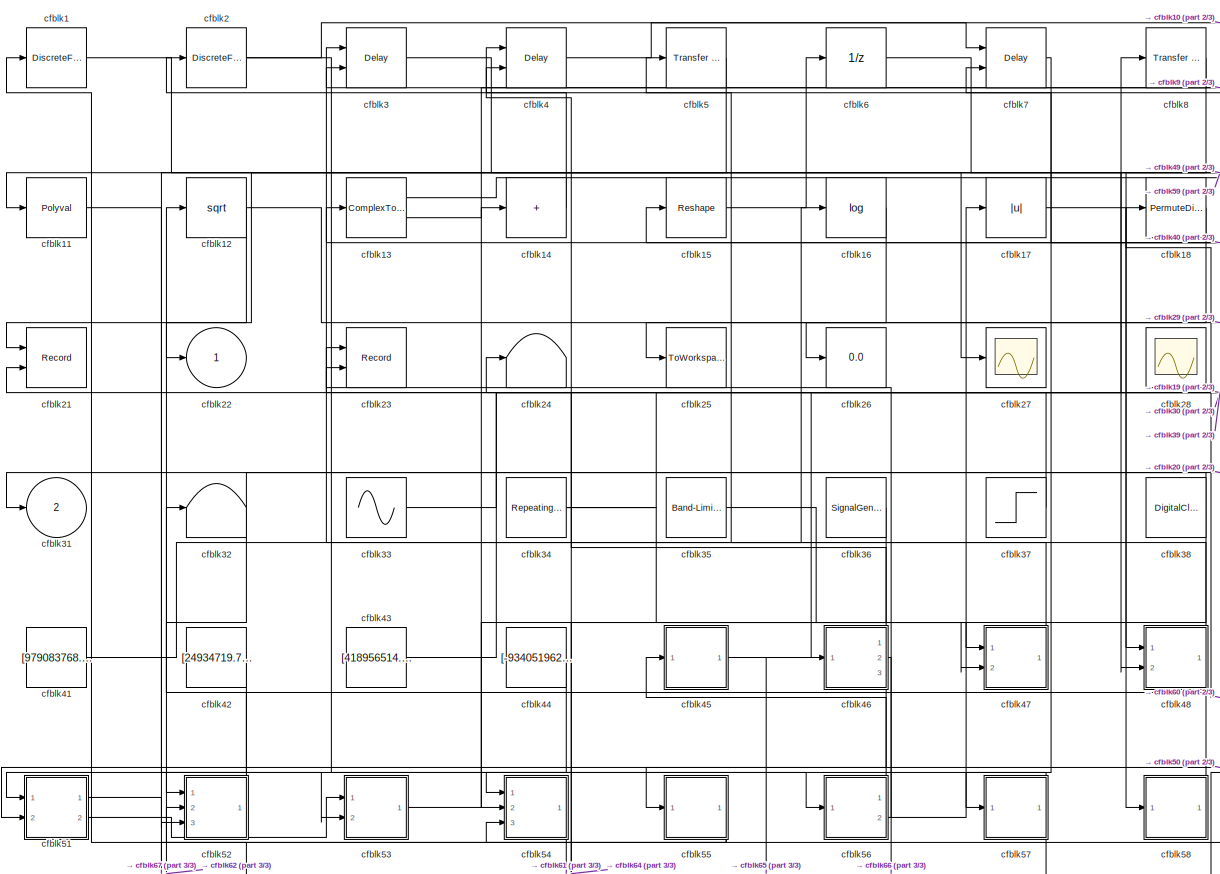
[diagram: root canvas - part 1/3, most of the canvas]
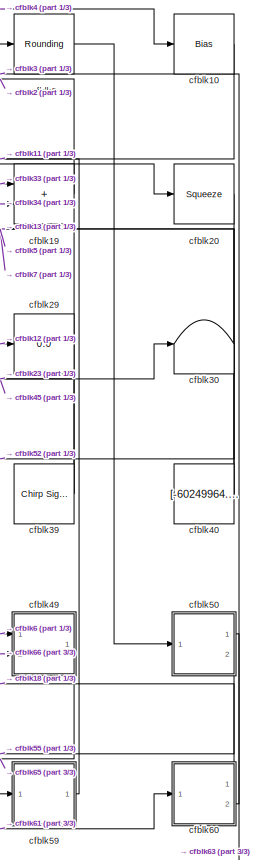
[diagram: root canvas - part 2/3, right side, full height]
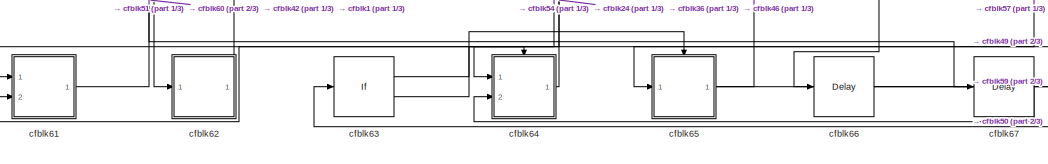
[diagram: root canvas - part 3/3, bottom center region]
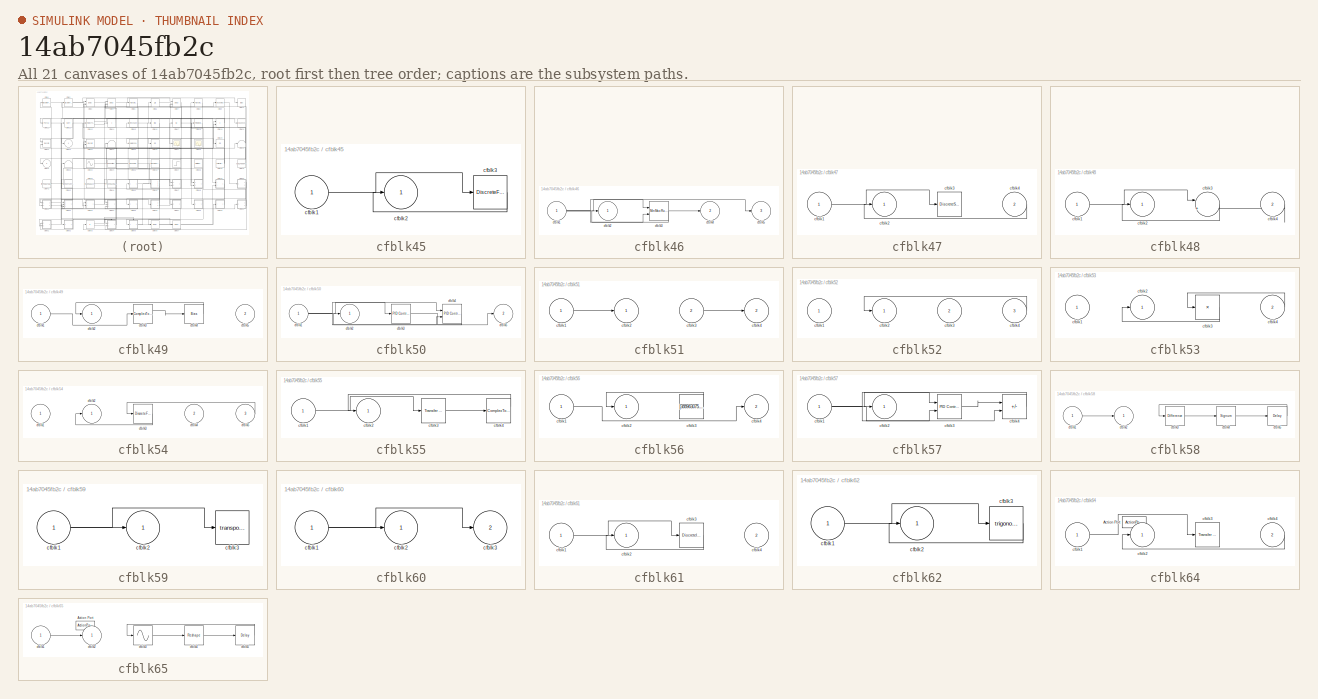
[diagram: thumbnail index - all 21 canvases of the model, root first then tree order]
MODEL slx_14ab7045fb2c
KIND model
CONFIG AbsTol = auto
CONFIG EnableMultiTasking = off
CONFIG FixedStep = auto
CONFIG MaxStep = auto
CONFIG MinStep = auto
CONFIG RelTol = 1e-3
CONFIG SampleTimeConstraint = Unconstrained
CONFIG SolverName = VariableStepAuto
CONFIG StartTime = 0.0
CONFIG StopTime = 10.0
BLOCK [DiscreteFir] cfblk1
  InputPortMap = u0
  OutputPortMap = o0
  Ports = [1, 1]
  SampleTime = 1
BLOCK [Bias] cfblk10
  Bias = [139529149.575083]
  SaturateOnIntegerOverflow = off
BLOCK [Polyval] cfblk11
  Coefs = [ +2.081618890e-019, -1.441693666e-014, +4.719686976e-010, -8.536869453e-006, +1.621573104e-001, -8.087801117e+001 ]
BLOCK [Sqrt] cfblk12
BLOCK [ComplexToRealImag] cfblk13
  Ports = [1, 2]
BLOCK [Sum] cfblk14
  IconShape = rectangular
  Inputs = +
  Ports = [1, 1]
BLOCK [Reshape] cfblk15
  Ports = [1, 1]
BLOCK [Math] cfblk16
  Operator = log
  Ports = [1, 1]
BLOCK [Abs] cfblk17
  SaturateOnIntegerOverflow = off
BLOCK [PermuteDimensions] cfblk18
BLOCK [Sum] cfblk19
  IconShape = rectangular
  Ports = [2, 1]
BLOCK [DiscreteFir] cfblk2
  InputPortMap = u0
  OutputPortMap = o0
  Ports = [1, 1]
  SampleTime = 1
BLOCK [Squeeze] cfblk20
BLOCK [Record] cfblk21
  CompatibilityTag = XY
  FileSettingsInternal = {"entries":[{"content":{"excelSettings":{"content":{},"type":"Streamout.ExcelSettings"}},"type":"Streamout.FileSettingStorage","uuid":"8694a5bb-1d16-4ad7-950e-c35a4b4d7b5d"}],"packageUris":["http://schema.mathworks.com/mf0/streamout_blocks/R2020a"],"version":"1.0"}
  Layout = [1 1]
  Ports = [2]
  SignalsInternal = {"entries":[{"content":{"signals":[{"content":{"blockPath":["sampleModel283/cfblk21"],"channel":[],"dimensions":[1],"domain":"sampleModel283/cfblk21","lineColor":"#a2142f","plots":[1],"port":1,"sid":[""],"signalID":12100,"signalName":"cfblk12"},"type":"RecordBlkView.Signal","uuid":"68d03bc7-fcef-4d0a-a321-f31d8b845c33"},{"content":{"blockPath":["sampleModel283/cfblk21"],"channel":[],"dimensions":[...<+385ch>
  VisualizationBindings = {"xyplotplugin":{"info":[{"series":[{"bindingParametersList":[{"parameter":"X-Axis","signalID":12100,"signalName":"cfblk12"},{"parameter":"Y-Axis","signalID":12104,"signalName":"cfblk37"}],"seriesID":11155}],"subplotID":1}]}}
BLOCK [Outport] cfblk22
BLOCK [Record] cfblk23
  CompatibilityTag = XY
  FileSettingsInternal = {"entries":[{"content":{"excelSettings":{"content":{},"type":"Streamout.ExcelSettings"}},"type":"Streamout.FileSettingStorage","uuid":"90ddd849-edd4-4e39-a333-4208290193cd"}],"packageUris":["http://schema.mathworks.com/mf0/streamout_blocks/R2020a"],"version":"1.0"}
  Layout = [1 1]
  Ports = [2]
  SignalsInternal = {"entries":[{"content":{"signals":[{"content":{"blockPath":["sampleModel283/cfblk23"],"channel":[],"dimensions":[1],"domain":"sampleModel283/cfblk23","lineColor":"#a2142f","plots":[1],"port":1,"sid":[""],"signalID":12108,"signalName":"cfblk39"},"type":"RecordBlkView.Signal","uuid":"9c057a92-301d-4b39-ab38-061aa18ef5d9"},{"content":{"blockPath":["sampleModel283/cfblk23"],"channel":[],"dimensions":[...<+387ch>
  VisualizationBindings = {"xyplotplugin":{"info":[{"series":[{"bindingParametersList":[{"parameter":"X-Axis","signalID":12108,"signalName":"cfblk39"},{"parameter":"Y-Axis","signalID":12112,"signalName":"cfblk56:2"}],"seriesID":64880}],"subplotID":1}]}}
BLOCK [Terminator] cfblk24
BLOCK [ToWorkspace] cfblk25
  FixptAsFi = on
  MaxDataPoints = inf
  Ports = [1]
  SampleTime = -1
  SaveFormat = Timeseries
  VariableName = tnvfxsn
BLOCK [Display] cfblk26
  Decimation = 1
  Ports = [1]
BLOCK [Scope] cfblk27
  Floating = off
  NumInputPorts = 1
  Ports = [1]
BLOCK [Scope] cfblk28
  Floating = on
  NumInputPorts = 1
  Ports = []
BLOCK [Display] cfblk29
  Decimation = 1
  Ports = [1]
BLOCK [Delay] cfblk3
  DelayLengthSource = Input port
  InputPortMap = u0,p1
  Ports = [2, 1]
  SampleTime = 1
BLOCK [Terminator] cfblk30
BLOCK [Outport] cfblk31
  Port = 2
BLOCK [Terminator] cfblk32
BLOCK [Sin] cfblk33
  Amplitude = [128819876.540734]
  Bias = [698200433.289732]
  Ports = [0, 1]
  SampleTime = 0
BLOCK [Reference] cfblk34  REF=simulink/Sources/Repeating
Sequence
Interpolated
  Ports = [0, 1]
  SourceBlock = simulink/Sources/Repeating\nSequence\nInterpolated
  SourceProductBaseCode = SL
  SourceType = Repeating Sequence Interpolated
BLOCK [Reference] cfblk35  REF=simulink/Sources/Band-Limited
White Noise
  Ports = [0, 1]
  SourceBlock = simulink/Sources/Band-Limited\nWhite Noise
  SourceProductBaseCode = SL
  SourceType = Band-Limited White Noise.
BLOCK [SignalGenerator] cfblk36
  Amplitude = [368174655.835128]
  Ports = [0, 1]
  Units = rad/sec
  WaveForm = square
BLOCK [Step] cfblk37
  After = [-569842712.243944]
  Before = [-937039488.309373]
  SampleTime = 0
  Time = [38.000000]
BLOCK [DigitalClock] cfblk38
BLOCK [Reference] cfblk39  REF=simulink/Sources/Chirp Signal
  Ports = [0, 1]
  SourceBlock = simulink/Sources/Chirp Signal
  SourceProductBaseCode = SL
  SourceType = chirp
BLOCK [Delay] cfblk4
  DelayLengthSource = Input port
  InputPortMap = u0,p1
  Ports = [2, 1]
  SampleTime = 1
BLOCK [Constant] cfblk40
  SampleTime = 1
  Value = [-60249964.559195]
BLOCK [Constant] cfblk41
  SampleTime = 1
  Value = [979083768.289908]
BLOCK [Constant] cfblk42
  SampleTime = 1
  Value = [24934719.715997]
BLOCK [Constant] cfblk43
  SampleTime = 1
  Value = [418956514.306853]
BLOCK [Constant] cfblk44
  SampleTime = 1
  Value = [-934051962.027325]
BLOCK [SubSystem] cfblk45
  Ports = [1, 1]
  RequestExecContextInheritance = off
BLOCK [Inport] cfblk45/cfblk1
BLOCK [Outport] cfblk45/cfblk2
BLOCK [DiscreteFir] cfblk45/cfblk3
  InputPortMap = u0
  OutputPortMap = o0
  Ports = [1, 1]
  SampleTime = 1
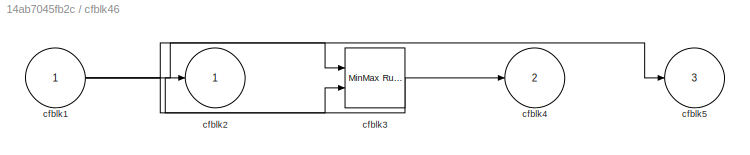
BLOCK [SubSystem] cfblk46
  Ports = [1, 3]
  RequestExecContextInheritance = off
BLOCK [Inport] cfblk46/cfblk1
BLOCK [Outport] cfblk46/cfblk2
BLOCK [Reference] cfblk46/cfblk3  REF=simulink/Math
Operations/MinMax
Running
Resettable
  Ports = [2, 1]
  SourceBlock = simulink/Math\nOperations/MinMax\nRunning\nResettable
  SourceProductBaseCode = SL
  SourceType = MinMax Running Resettable
BLOCK [Outport] cfblk46/cfblk4
  Port = 2
BLOCK [Outport] cfblk46/cfblk5
  Port = 3
BLOCK [SubSystem] cfblk47
  Ports = [2, 1]
  RequestExecContextInheritance = off
BLOCK [Inport] cfblk47/cfblk1
BLOCK [Outport] cfblk47/cfblk2
BLOCK [DiscreteStateSpace] cfblk47/cfblk3
BLOCK [Inport] cfblk47/cfblk4
  Port = 2
BLOCK [SubSystem] cfblk48
  Ports = [2, 1]
  RequestExecContextInheritance = off
BLOCK [Inport] cfblk48/cfblk1
BLOCK [Outport] cfblk48/cfblk2
BLOCK [Sum] cfblk48/cfblk3
  Inputs = |++
  Ports = [2, 1]
BLOCK [Inport] cfblk48/cfblk4
  Port = 2
BLOCK [SubSystem] cfblk49
  Ports = [2, 1]
  RequestExecContextInheritance = off
BLOCK [Inport] cfblk49/cfblk1
BLOCK [Outport] cfblk49/cfblk2
BLOCK [ComplexToMagnitudeAngle] cfblk49/cfblk3
  Ports = [1, 2]
BLOCK [Bias] cfblk49/cfblk4
  Bias = [353770948.642986]
  SaturateOnIntegerOverflow = off
BLOCK [Inport] cfblk49/cfblk5
  Port = 2
BLOCK [Reference] cfblk5  REF=simulink/Discrete/Transfer Fcn
First Order
  Ports = [1, 1]
  SourceBlock = simulink/Discrete/Transfer Fcn\nFirst Order
  SourceProductBaseCode = SL
  SourceType = First Order Transfer Fcn
BLOCK [SubSystem] cfblk50
  Ports = [1, 2]
  RequestExecContextInheritance = off
BLOCK [Inport] cfblk50/cfblk1
BLOCK [Outport] cfblk50/cfblk2
BLOCK [Reference] cfblk50/cfblk3  REF=slpidlib/PID Controller
  Ports = [1, 1]
  SourceBlock = slpidlib/PID Controller
  SourceProductBaseCode = SL
  SourceType = PID 1dof
BLOCK [Reference] cfblk50/cfblk4  REF=slpidlib/PID Controller (2DOF)
  Ports = [2, 1]
  SourceBlock = slpidlib/PID Controller (2DOF)
  SourceProductBaseCode = SL
  SourceType = PID 2dof
BLOCK [Outport] cfblk50/cfblk5
  Port = 2
BLOCK [SubSystem] cfblk51
  Ports = [2, 2]
  RequestExecContextInheritance = off
BLOCK [Inport] cfblk51/cfblk1
BLOCK [Outport] cfblk51/cfblk2
BLOCK [Inport] cfblk51/cfblk3
  Port = 2
BLOCK [Outport] cfblk51/cfblk4
  Port = 2
BLOCK [SubSystem] cfblk52
  Ports = [3, 1]
  RequestExecContextInheritance = off
BLOCK [Inport] cfblk52/cfblk1
BLOCK [Outport] cfblk52/cfblk2
BLOCK [Inport] cfblk52/cfblk3
  Port = 2
BLOCK [Inport] cfblk52/cfblk4
  Port = 3
BLOCK [SubSystem] cfblk53
  Ports = [2, 1]
  RequestExecContextInheritance = off
BLOCK [Inport] cfblk53/cfblk1
BLOCK [Outport] cfblk53/cfblk2
BLOCK [Product] cfblk53/cfblk3
  Inputs = *
  Ports = [1, 1]
BLOCK [Inport] cfblk53/cfblk4
  Port = 2
BLOCK [SubSystem] cfblk54
  Ports = [3, 1]
  RequestExecContextInheritance = off
BLOCK [Inport] cfblk54/cfblk1
BLOCK [Outport] cfblk54/cfblk2
BLOCK [DiscreteFilter] cfblk54/cfblk3
  InputPortMap = u0
  Ports = [1, 1]
  SampleTime = 1
BLOCK [Inport] cfblk54/cfblk4
  Port = 2
BLOCK [Inport] cfblk54/cfblk5
  Port = 3
BLOCK [SubSystem] cfblk55
  Ports = [1, 1]
  RequestExecContextInheritance = off
BLOCK [Inport] cfblk55/cfblk1
BLOCK [Outport] cfblk55/cfblk2
BLOCK [Reference] cfblk55/cfblk3  REF=simulink/Discrete/Transfer Fcn
Lead or Lag
  Ports = [1, 1]
  SourceBlock = simulink/Discrete/Transfer Fcn\nLead or Lag
  SourceProductBaseCode = SL
  SourceType = Lead or Lag Compensator
BLOCK [ComplexToRealImag] cfblk55/cfblk4
  Ports = [1, 2]
BLOCK [SubSystem] cfblk56
  Ports = [1, 2]
  RequestExecContextInheritance = off
BLOCK [Inport] cfblk56/cfblk1
BLOCK [Outport] cfblk56/cfblk2
BLOCK [Constant] cfblk56/cfblk3
  SampleTime = 1
  Value = [388963075.985211]
BLOCK [Outport] cfblk56/cfblk4
  Port = 2
BLOCK [SubSystem] cfblk57
  Ports = [1, 1]
  RequestExecContextInheritance = off
BLOCK [Inport] cfblk57/cfblk1
BLOCK [Outport] cfblk57/cfblk2
BLOCK [Reference] cfblk57/cfblk3  REF=slpidlib/PID Controller (2DOF)
  Ports = [2, 1]
  SourceBlock = slpidlib/PID Controller (2DOF)
  SourceProductBaseCode = SL
  SourceType = PID 2dof
BLOCK [Sum] cfblk57/cfblk4
  IconShape = rectangular
  Inputs = --
  Ports = [2, 1]
BLOCK [SubSystem] cfblk58
  Ports = [1, 1]
  RequestExecContextInheritance = off
BLOCK [Inport] cfblk58/cfblk1
BLOCK [Outport] cfblk58/cfblk2
BLOCK [Reference] cfblk58/cfblk3  REF=simulink/Discrete/Difference
  Ports = [1, 1]
  SourceBlock = simulink/Discrete/Difference
  SourceProductBaseCode = SL
  SourceType = Difference
BLOCK [Signum] cfblk58/cfblk4
BLOCK [Delay] cfblk58/cfblk5
  InputPortMap = u0
  Ports = [1, 1]
  SampleTime = 1
BLOCK [SubSystem] cfblk59
  Ports = [1, 1]
  RequestExecContextInheritance = off
BLOCK [Inport] cfblk59/cfblk1
BLOCK [Outport] cfblk59/cfblk2
BLOCK [Math] cfblk59/cfblk3
  Operator = transpose
  Ports = [1, 1]
BLOCK [UnitDelay] cfblk6
  HasFrameUpgradeWarning = on
BLOCK [SubSystem] cfblk60
  Ports = [1, 2]
  RequestExecContextInheritance = off
BLOCK [Inport] cfblk60/cfblk1
BLOCK [Outport] cfblk60/cfblk2
BLOCK [Outport] cfblk60/cfblk3
  Port = 2
BLOCK [SubSystem] cfblk61
  Ports = [2, 1]
  RequestExecContextInheritance = off
BLOCK [Inport] cfblk61/cfblk1
BLOCK [Outport] cfblk61/cfblk2
BLOCK [DiscreteIntegrator] cfblk61/cfblk3
  ICPrevOutput = DiscIntNeverNeededParam
  ICPrevScaledInput = DiscIntNeverNeededParam
  InitialConditionSetting = Auto
  Ports = [1, 1]
BLOCK [Inport] cfblk61/cfblk4
  Port = 2
BLOCK [SubSystem] cfblk62
  Ports = [1, 1]
  RequestExecContextInheritance = off
BLOCK [Inport] cfblk62/cfblk1
BLOCK [Outport] cfblk62/cfblk2
BLOCK [Trigonometry] cfblk62/cfblk3
  Ports = [1, 1]
BLOCK [If] cfblk63
  IfExpression = u1 >= 0
  Ports = [1, 2]
  SampleTime = 1
BLOCK [SubSystem] cfblk64
  Ports = [2, 1, 0, 0, 0, 0, 0, 1]
  RequestExecContextInheritance = off
  TreatAsAtomicUnit = on
BLOCK [ActionPort] cfblk64/Action Port
  ActionPortLabel = if(u1 >= 0)
BLOCK [Inport] cfblk64/cfblk1
BLOCK [Outport] cfblk64/cfblk2
BLOCK [Reference] cfblk64/cfblk3  REF=simulink/Discrete/Transfer Fcn
First Order
  Ports = [1, 1]
  SourceBlock = simulink/Discrete/Transfer Fcn\nFirst Order
  SourceProductBaseCode = SL
  SourceType = First Order Transfer Fcn
BLOCK [Inport] cfblk64/cfblk4
  Port = 2
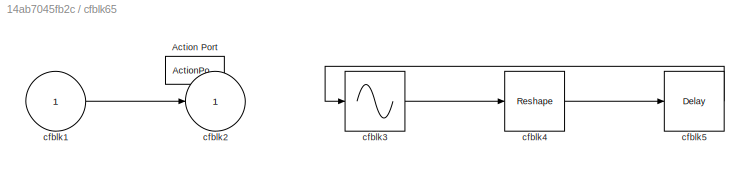
BLOCK [SubSystem] cfblk65
  Ports = [1, 1, 0, 0, 0, 0, 0, 1]
  RequestExecContextInheritance = off
  TreatAsAtomicUnit = on
BLOCK [ActionPort] cfblk65/Action Port
  ActionPortLabel = else
BLOCK [Inport] cfblk65/cfblk1
BLOCK [Outport] cfblk65/cfblk2
BLOCK [Sin] cfblk65/cfblk3
  Ports = [1, 1]
  SampleTime = 0
  TimeSource = Use external signal
BLOCK [Reshape] cfblk65/cfblk4
  Ports = [1, 1]
BLOCK [Delay] cfblk65/cfblk5
  InputPortMap = u0
  Ports = [1, 1]
BLOCK [Delay] cfblk66
  InputPortMap = u0
  Ports = [1, 1]
  SampleTime = 1
BLOCK [Delay] cfblk67
  InputPortMap = u0
  Ports = [1, 1]
  SampleTime = 1
BLOCK [Delay] cfblk7
  InputPortMap = u0,e6
  Ports = [2, 1]
  SampleTime = 1
  ShowEnablePort = on
BLOCK [Reference] cfblk8  REF=simulink/Discrete/Transfer Fcn
First Order
  Ports = [1, 1]
  SourceBlock = simulink/Discrete/Transfer Fcn\nFirst Order
  SourceProductBaseCode = SL
  SourceType = First Order Transfer Fcn
BLOCK [Rounding] cfblk9
LINE cfblk10:1 -> cfblk52:3
LINE cfblk11:1 -> cfblk53:2
NET cfblk12:1 -> cfblk21:1, cfblk29:1
LINE cfblk13:1 -> cfblk20:1
LINE cfblk13:2 -> cfblk9:1
LINE cfblk14:1 -> cfblk4:2
LINE cfblk15:1 -> cfblk6:1
LINE cfblk16:1 -> cfblk26:1
LINE cfblk17:1 -> cfblk58:1
LINE cfblk18:1 -> cfblk25:1
LINE cfblk19:1 -> cfblk2:1
LINE cfblk1:1 -> cfblk48:2
LINE cfblk20:1 -> cfblk52:1
NET cfblk2:1 -> cfblk56:1, cfblk7:1
LINE cfblk33:1 -> cfblk19:1
NET cfblk34:1 -> cfblk19:2, cfblk47:2
LINE cfblk35:1 -> cfblk47:1
LINE cfblk36:1 -> cfblk64:1
LINE cfblk37:1 -> cfblk21:2
NET cfblk38:1 -> cfblk31:1, cfblk54:2
NET cfblk39:1 -> cfblk23:1, cfblk5:1
LINE cfblk3:1 -> cfblk27:1
NET cfblk40:1 -> cfblk13:1, cfblk7:2
LINE cfblk41:1 -> cfblk16:1
LINE cfblk42:1 -> cfblk62:1
LINE cfblk43:1 -> cfblk8:1
LINE cfblk44:1 -> cfblk54:1
LINE cfblk45/cfblk1:1 -> cfblk45/cfblk3:1
LINE cfblk45/cfblk3:1 -> cfblk45/cfblk2:1
LINE cfblk45:1 -> cfblk30:1
NET cfblk46/cfblk1:1 -> cfblk46/cfblk3:1, cfblk46/cfblk3:2, cfblk46/cfblk5:1
NET cfblk46/cfblk3:1 -> cfblk46/cfblk2:1, cfblk46/cfblk4:1
LINE cfblk46:1 -> cfblk4:1
LINE cfblk46:2 -> cfblk66:1
LINE cfblk46:3 -> cfblk51:2
LINE cfblk47/cfblk1:1 -> cfblk47/cfblk3:1
LINE cfblk47/cfblk4:1 -> cfblk47/cfblk2:1
LINE cfblk47:1 -> cfblk3:1
LINE cfblk48/cfblk1:1 -> cfblk48/cfblk3:1
LINE cfblk48/cfblk3:1 -> cfblk48/cfblk2:1
LINE cfblk48/cfblk4:1 -> cfblk48/cfblk3:2
LINE cfblk48:1 -> cfblk15:1
LINE cfblk49/cfblk1:1 -> cfblk49/cfblk3:1
LINE cfblk49/cfblk3:1 -> cfblk49/cfblk4:1
LINE cfblk49/cfblk4:1 -> cfblk49/cfblk2:1
LINE cfblk49:1 -> cfblk65:1
LINE cfblk4:1 -> cfblk10:1
NET cfblk50/cfblk1:1 -> cfblk50/cfblk3:1, cfblk50/cfblk4:1, cfblk50/cfblk4:2
LINE cfblk50/cfblk3:1 -> cfblk50/cfblk5:1
LINE cfblk50/cfblk4:1 -> cfblk50/cfblk2:1
LINE cfblk50:1 -> cfblk63:1
LINE cfblk50:2 -> cfblk55:1
LINE cfblk51/cfblk1:1 -> cfblk51/cfblk2:1
LINE cfblk51/cfblk3:1 -> cfblk51/cfblk4:1
LINE cfblk51:1 -> cfblk67:1
LINE cfblk51:2 -> cfblk53:1
LINE cfblk52/cfblk4:1 -> cfblk52/cfblk2:1
LINE cfblk52:1 -> cfblk12:1
LINE cfblk53/cfblk3:1 -> cfblk53/cfblk2:1
LINE cfblk53/cfblk4:1 -> cfblk53/cfblk3:1
LINE cfblk53:1 -> cfblk14:1
LINE cfblk54/cfblk3:1 -> cfblk54/cfblk2:1
LINE cfblk54/cfblk5:1 -> cfblk54/cfblk3:1
LINE cfblk54:1 -> cfblk61:1
LINE cfblk55/cfblk1:1 -> cfblk55/cfblk3:1
LINE cfblk55/cfblk3:1 -> cfblk55/cfblk4:1
LINE cfblk55/cfblk4:1 -> cfblk55/cfblk2:1
NET cfblk55:1 -> cfblk52:2, cfblk54:3
LINE cfblk56/cfblk1:1 -> cfblk56/cfblk4:1
LINE cfblk56/cfblk3:1 -> cfblk56/cfblk2:1
LINE cfblk56:1 -> cfblk45:1
NET cfblk56:2 -> cfblk17:1, cfblk23:2
NET cfblk57/cfblk1:1 -> cfblk57/cfblk3:1, cfblk57/cfblk3:2, cfblk57/cfblk4:2
LINE cfblk57/cfblk3:1 -> cfblk57/cfblk4:1
LINE cfblk57/cfblk4:1 -> cfblk57/cfblk2:1
NET cfblk57:1 -> cfblk51:1, cfblk61:2
LINE cfblk58/cfblk1:1 -> cfblk58/cfblk2:1
LINE cfblk58/cfblk3:1 -> cfblk58/cfblk4:1
LINE cfblk58/cfblk4:1 -> cfblk58/cfblk5:1
LINE cfblk58/cfblk5:1 -> cfblk58/cfblk3:1
LINE cfblk58:1 -> cfblk32:1
NET cfblk59/cfblk1:1 -> cfblk59/cfblk2:1, cfblk59/cfblk3:1
LINE cfblk59:1 -> cfblk11:1
LINE cfblk5:1 -> cfblk22:1
NET cfblk60/cfblk1:1 -> cfblk60/cfblk2:1, cfblk60/cfblk3:1
LINE cfblk60:1 -> cfblk18:1
LINE cfblk60:2 -> cfblk3:2
LINE cfblk61/cfblk1:1 -> cfblk61/cfblk3:1
LINE cfblk61/cfblk3:1 -> cfblk61/cfblk2:1
LINE cfblk61:1 -> cfblk60:1
LINE cfblk62/cfblk1:1 -> cfblk62/cfblk3:1
LINE cfblk62/cfblk3:1 -> cfblk62/cfblk2:1
LINE cfblk62:1 -> cfblk1:1
LINE cfblk63:1 -> cfblk64:ifaction
LINE cfblk63:2 -> cfblk65:ifaction
LINE cfblk64/cfblk1:1 -> cfblk64/cfblk3:1
LINE cfblk64/cfblk4:1 -> cfblk64/cfblk2:1
LINE cfblk64:1 -> cfblk24:1
LINE cfblk65/cfblk1:1 -> cfblk65/cfblk2:1
LINE cfblk65/cfblk3:1 -> cfblk65/cfblk4:1
LINE cfblk65/cfblk4:1 -> cfblk65/cfblk5:1
LINE cfblk65/cfblk5:1 -> cfblk65/cfblk3:1
NET cfblk65:1 -> cfblk46:1, cfblk59:1
LINE cfblk66:1 -> cfblk49:2
LINE cfblk67:1 -> cfblk64:2
LINE cfblk6:1 -> cfblk49:1
LINE cfblk7:1 -> cfblk57:1
LINE cfblk8:1 -> cfblk48:1
LINE cfblk9:1 -> cfblk50:1
note: NET lines group one-source signal fan-out (src -> all destinations, sorted); 1:1 wires keep LINE
